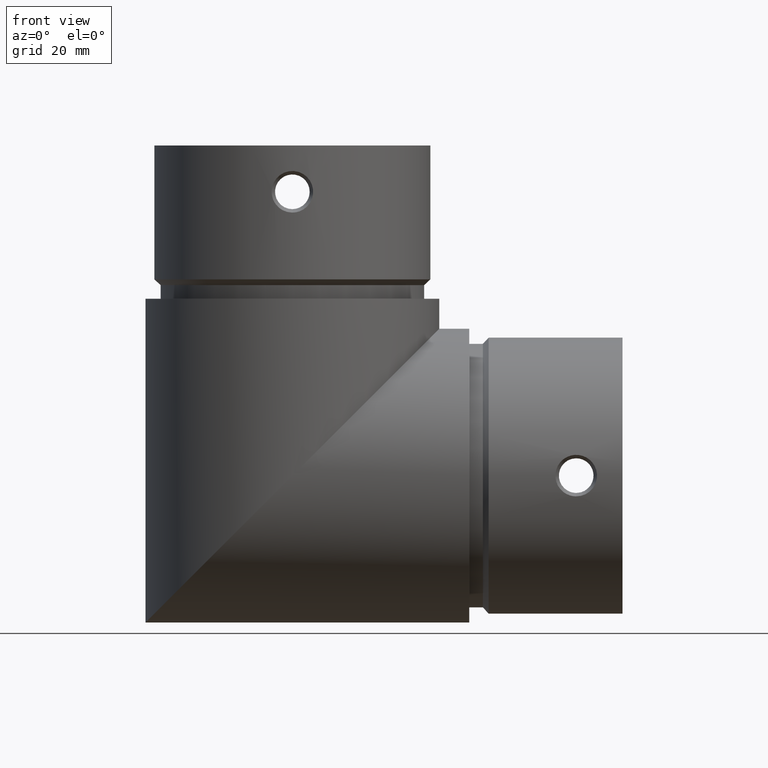
[diagram: clean part render]
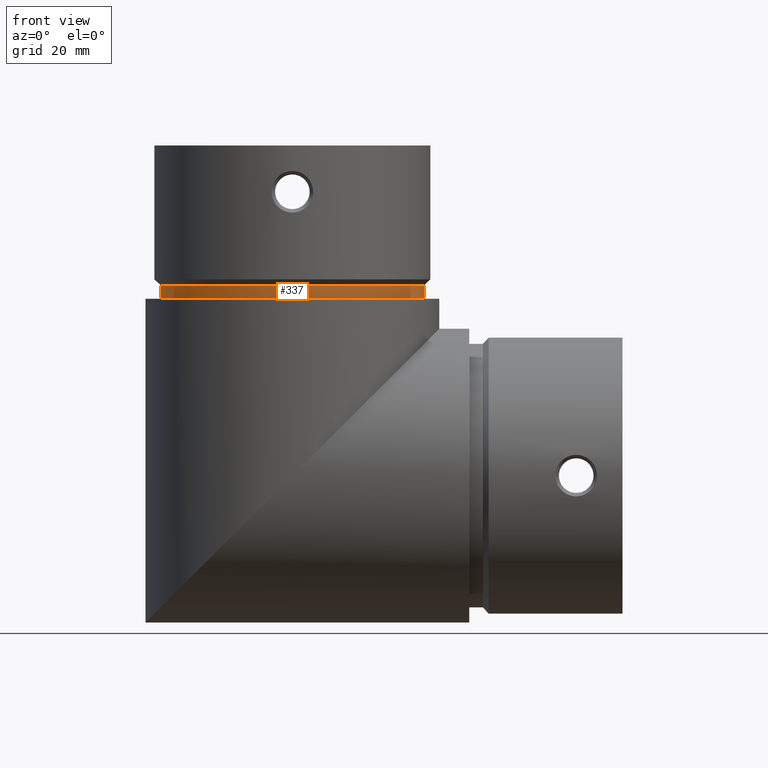
[diagram: same view with one face highlighted and labeled with its STEP entity id]
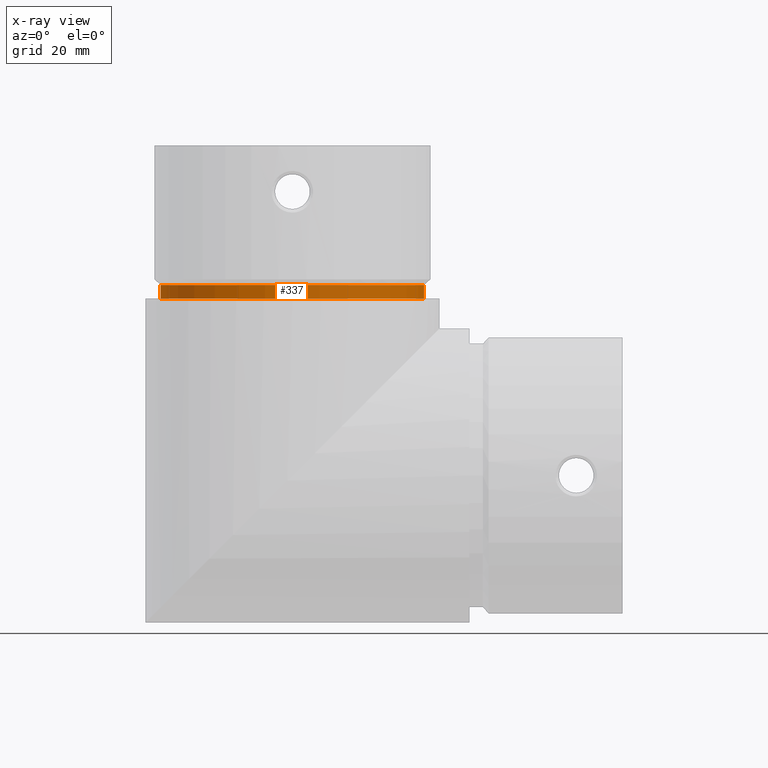
[diagram: x-ray of the same camera — body ghosted, the highlighted face saturated]
A machine part, front view. The second image highlights one B-rep face of the part: STEP entity #337.
The next image is the same camera in x-ray: the body ghosted, the highlighted face saturated — about 0% of this face is hidden behind the body in this view.
In plain terms, the highlighted cylindrical surface (partial cylindrical patch) has radius 22.9 mm, axis along (0, 0, -1).
Its self-contained STEP definition (entity closure, byte-faithful):
#337=ADVANCED_FACE('',(#634),#636,.T.);
#634=FACE_BOUND('',#635,.T.);
#635=EDGE_LOOP('',(#1140,#1141,#1142,#1143));
#636=CYLINDRICAL_SURFACE('',#637,22.9);
#637=AXIS2_PLACEMENT_3D('',#638,#639,#640);
#638=CARTESIAN_POINT('',(25.4,0.,56.));
#639=DIRECTION('',(6.2219153744317E-017,0.,-1.));
#640=DIRECTION('',(0.,-1.,0.));
#1140=ORIENTED_EDGE('',*,*,#1232,.F.);
#1141=ORIENTED_EDGE('',*,*,#1267,.F.);
#1142=ORIENTED_EDGE('',*,*,#1236,.F.);
#1143=ORIENTED_EDGE('',*,*,#1234,.T.);
#1232=EDGE_CURVE('',#1383,#1385,#1386,.T.);
#1234=EDGE_CURVE('',#1388,#1385,#1389,.T.);
#1236=EDGE_CURVE('',#1388,#1391,#1392,.F.);
#1267=EDGE_CURVE('',#1391,#1383,#1436,.T.);
#1383=VERTEX_POINT('',#1933);
#1385=VERTEX_POINT('',#1937);
#1386=LINE('',#1938,#1939);
#1388=VERTEX_POINT('',#1947);
#1389=CIRCLE('',#1948,22.9);
#1391=VERTEX_POINT('',#1958);
#1392=LINE('',#1959,#1960);
#1436=CIRCLE('',#2083,22.9);
#1933=CARTESIAN_POINT('',(15.9,20.8365064250224,56.));
#1937=CARTESIAN_POINT('',(15.9,20.8365064250224,58.3478819027852));
#1938=CARTESIAN_POINT('',(15.9,20.8365064250224,56.));
#1939=VECTOR('',#1940,1.);
#1940=DIRECTION('',(0.,0.,1.));
#1947=CARTESIAN_POINT('',(34.9,20.8365064250224,58.3478819027852));
#1948=AXIS2_PLACEMENT_3D('',#1949,#1950,#1951);
#1949=CARTESIAN_POINT('',(25.4,0.,58.3478819027852));
#1950=DIRECTION('',(6.2219153744317E-017,0.,-1.));
#1951=DIRECTION('',(0.414847161572053,0.909891110262987,2.58114393262451E-017));
#1958=CARTESIAN_POINT('',(34.9,20.8365064250224,56.));
#1959=CARTESIAN_POINT('',(34.9,20.8365064250224,56.));
#1960=VECTOR('',#1961,1.);
#1961=DIRECTION('',(0.,0.,1.));
#2083=AXIS2_PLACEMENT_3D('',#2084,#2085,#2086);
#2084=CARTESIAN_POINT('',(25.4,0.,56.));
#2085=DIRECTION('',(6.2219153744317E-017,0.,-1.));
#2086=DIRECTION('',(0.414847161572052,0.909891110262987,2.5811439326245E-017));